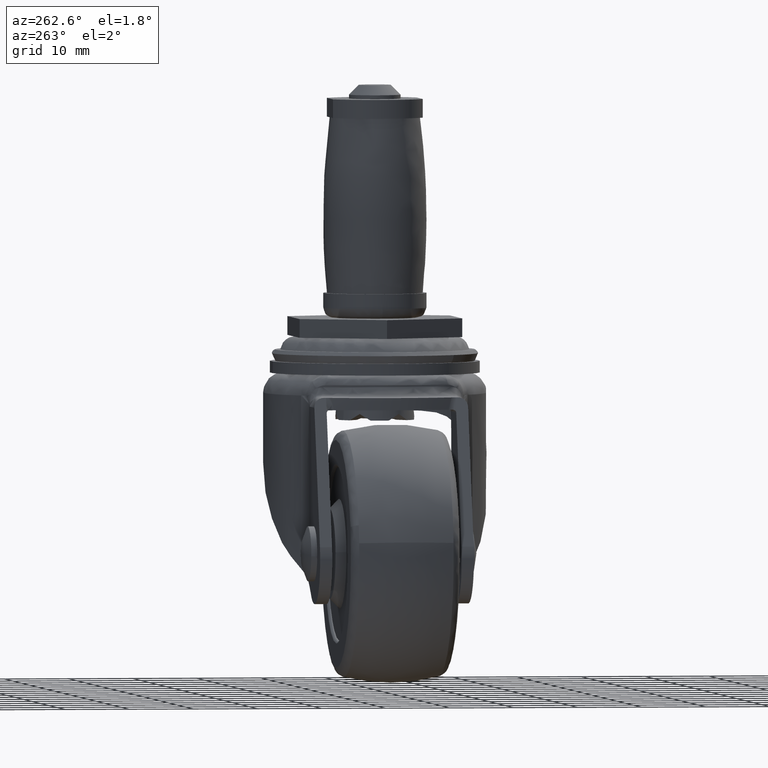
[diagram: clean part render]
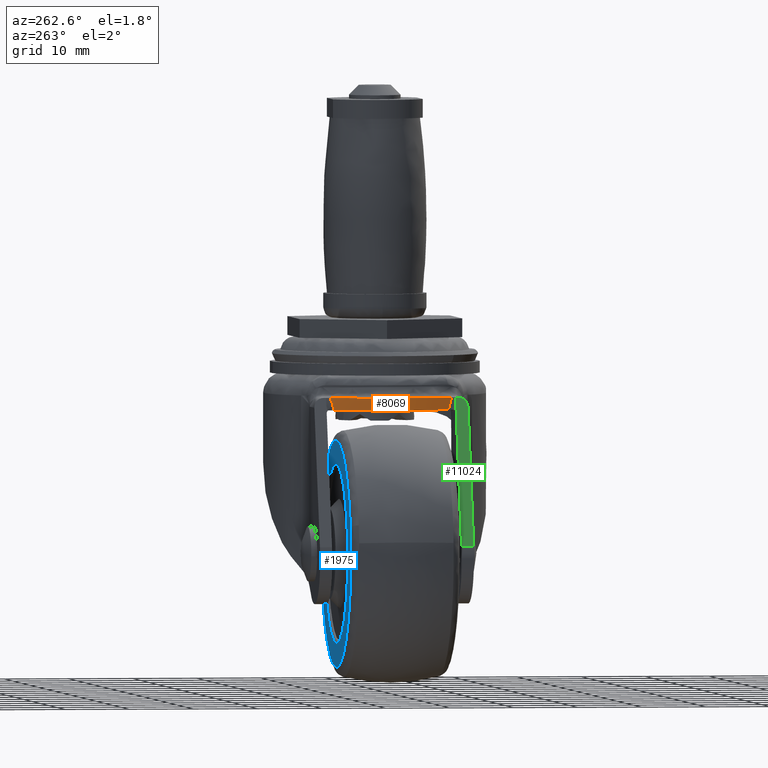
[diagram: same view with three faces highlighted in distinct colors, each labeled with its STEP entity id]
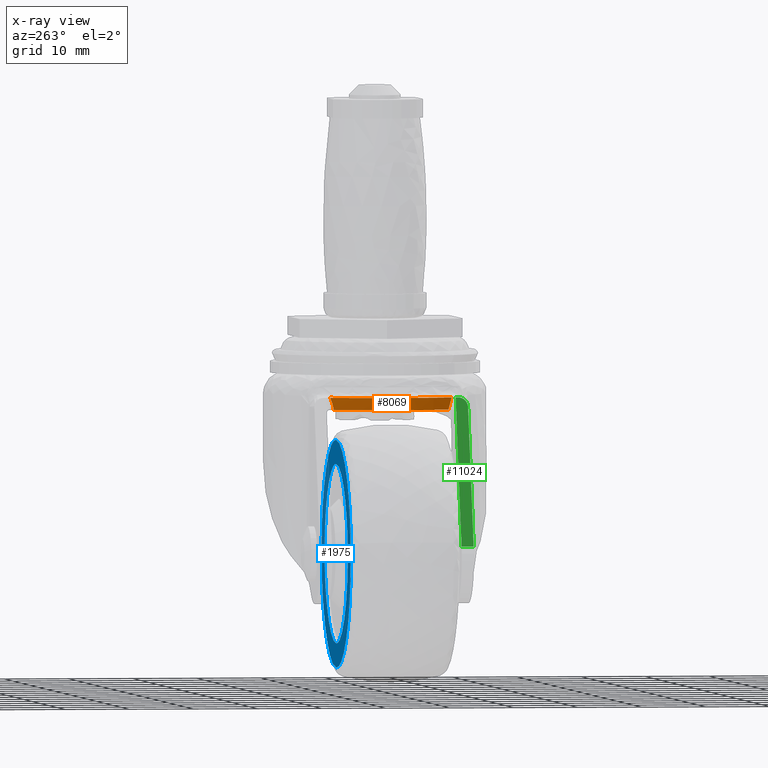
[diagram: x-ray of the same camera — body ghosted, the three highlighted faces saturated]
A machine part, auxiliary view with three faces highlighted in distinct colors.
The next image is the same camera in x-ray (body ghosted, the three faces saturated) — at least one of them is partly hidden behind the body in this view.
Their STEP definitions:

[orange] entity #8069 — the highlighted face is a freeform B-spline surface patch.
#7875=CARTESIAN_POINT('',(-19.690443371143299,-8.950319797784760,-13.740971000000039));
#7876=VERTEX_POINT('',#7875);
#7898=CARTESIAN_POINT('',(-19.431056740253052,-9.481630320366211,-11.850971000000101));
#7899=VERTEX_POINT('',#7898);
#7911=CARTESIAN_POINT('',(-19.690443371143299,-8.950319797784760,-13.740971000000039));
#7912=CARTESIAN_POINT('',(-19.676226628024839,-8.980510777933832,-13.578913876093020));
#7913=CARTESIAN_POINT('',(-19.660607875953520,-9.013495783947111,-13.417497484154669));
#7914=CARTESIAN_POINT('',(-19.626148100527040,-9.085693296732389,-13.096629250302170));
#7915=CARTESIAN_POINT('',(-19.607311361702529,-9.124899609244221,-12.937125412214071));
#7916=CARTESIAN_POINT('',(-19.565600887234812,-9.210901568941493,-12.620402659607629));
#7917=CARTESIAN_POINT('',(-19.542756298530730,-9.257642103612026,-12.463268097623081));
#7918=CARTESIAN_POINT('',(-19.491684168497510,-9.360967299937762,-12.153272845298529));
#7919=CARTESIAN_POINT('',(-19.463485864572650,-9.417509319386918,-12.000115233663619));
#7920=CARTESIAN_POINT('',(-19.431056740253052,-9.481630320366179,-11.850971000000101));
#7921=B_SPLINE_CURVE_WITH_KNOTS('',3,(#7911,#7912,#7913,#7914,#7915,#7916,#7917,#7918,#7919,#7920),.UNSPECIFIED.,.F.,.U.,(4,2,2,2,4),(0.0,0.250000000000000,0.500000000000000,0.750000000000000,1.0),.UNSPECIFIED.);
#7922=EDGE_CURVE('',#7876,#7899,#7921,.T.);
#7975=CARTESIAN_POINT('',(-19.690443080611001,8.950319499360791,-13.740971000000039));
#7976=VERTEX_POINT('',#7975);
#7988=CARTESIAN_POINT('',(-19.431056620267199,9.481629642205599,-11.850971000000101));
#7989=VERTEX_POINT('',#7988);
#7990=CARTESIAN_POINT('',(-19.431056620267199,9.481629642205599,-11.850971000000101));
#7991=CARTESIAN_POINT('',(-19.463485714914391,9.417508701911373,-12.000115253374849));
#7992=CARTESIAN_POINT('',(-19.491683997837661,9.360966727166387,-12.153272872593771));
#7993=CARTESIAN_POINT('',(-19.542756092295232,9.257641608079984,-12.463268131699520));
#7994=CARTESIAN_POINT('',(-19.565600667072211,9.210901104706828,-12.620402694604699));
#7995=CARTESIAN_POINT('',(-19.607311116626239,9.124899201936247,-12.937125440762150));
#7996=CARTESIAN_POINT('',(-19.626147844966301,9.085692914040262,-13.096629274336070));
#7997=CARTESIAN_POINT('',(-19.660607601545490,9.013495446180622,-13.417497497654560));
#7998=CARTESIAN_POINT('',(-19.676226345258911,8.980510460474354,-13.578913883379160));
#7999=CARTESIAN_POINT('',(-19.690443080611001,8.950319499360791,-13.740971000000039));
#8000=B_SPLINE_CURVE_WITH_KNOTS('',3,(#7990,#7991,#7992,#7993,#7994,#7995,#7996,#7997,#7998,#7999),.UNSPECIFIED.,.F.,.U.,(4,2,2,2,4),(0.0,0.250000000000000,0.500000000000000,0.750000000000000,1.0),.UNSPECIFIED.);
#8001=EDGE_CURVE('',#7989,#7976,#8000,.T.);
#8025=CARTESIAN_POINT('',(-19.007420988018112,-10.276489755889351,-13.788221000000039));
#8026=CARTESIAN_POINT('',(-19.007420988018112,-10.276489755889351,-11.802539750000101));
#8027=CARTESIAN_POINT('',(-24.784216651935314,0.024147971005365,-13.788221000000043));
#8028=CARTESIAN_POINT('',(-24.784216651935314,0.024147971005365,-11.802539750000101));
#8029=CARTESIAN_POINT('',(-18.986790673724567,10.313188633309444,-13.788221000000039));
#8030=CARTESIAN_POINT('',(-18.986790673724567,10.313188633309444,-11.802539750000109));
#8038=(BOUNDED_SURFACE()B_SPLINE_SURFACE(1,2,((#8025,#8027,#8029),(#8026,#8028,#8030)),.UNSPECIFIED.,.F.,.F.,.U.)B_SPLINE_SURFACE_WITH_KNOTS((2,2),(3,3),(0.0,1.0),(0.0,22.000927826651608),.UNSPECIFIED.)GEOMETRIC_REPRESENTATION_ITEM()RATIONAL_B_SPLINE_SURFACE(((1.0,0.871081397774855,0.998556720761890),(1.0,0.871081397774855,0.998556720761890)))REPRESENTATION_ITEM('')SURFACE());
#8039=CARTESIAN_POINT('',(-19.431056620267210,9.481629642205601,-11.850971000000101));
#8040=CARTESIAN_POINT('',(-24.226380482921854,-0.000000308738951,-11.850971000000099));
#8041=CARTESIAN_POINT('',(-19.431056740253059,-9.481630320366204,-11.850971000000101));
#8049=(BOUNDED_CURVE()B_SPLINE_CURVE(2,(#8039,#8040,#8041),.UNSPECIFIED.,.F.,.U.)CURVE()GEOMETRIC_REPRESENTATION_ITEM()QUASI_UNIFORM_CURVE()RATIONAL_B_SPLINE_CURVE((1.0,0.892365731503941,1.0))REPRESENTATION_ITEM(''));
#8050=EDGE_CURVE('',#7989,#7899,#8049,.T.);
#8051=ORIENTED_EDGE('',*,*,#8050,.F.);
#8052=ORIENTED_EDGE('',*,*,#8001,.T.);
#8053=CARTESIAN_POINT('',(-19.690443080611011,8.950319499360797,-13.740971000000039));
#8054=CARTESIAN_POINT('',(-23.905092766960706,-0.000000080807061,-13.740971000000041));
#8055=CARTESIAN_POINT('',(-19.690443371143299,-8.950319797784752,-13.740971000000039));
#8063=(BOUNDED_CURVE()B_SPLINE_CURVE(2,(#8053,#8054,#8055),.UNSPECIFIED.,.F.,.U.)CURVE()GEOMETRIC_REPRESENTATION_ITEM()QUASI_UNIFORM_CURVE()RATIONAL_B_SPLINE_CURVE((1.0,0.904712186044011,1.0))REPRESENTATION_ITEM(''));
#8064=EDGE_CURVE('',#7976,#7876,#8063,.T.);
#8065=ORIENTED_EDGE('',*,*,#8064,.T.);
#8066=ORIENTED_EDGE('',*,*,#7922,.T.);
#8067=EDGE_LOOP('',(#8051,#8052,#8065,#8066));
#8068=FACE_OUTER_BOUND('',#8067,.T.);
#8069=ADVANCED_FACE('',(#8068),#8038,.T.);

[blue] entity #1975 — the highlighted face is a freeform B-spline surface patch.
#1451=CARTESIAN_POINT('',(-1.983238122407538,8.499999999999988,-40.597842754555941));
#1452=VERTEX_POINT('',#1451);
#1466=CARTESIAN_POINT('',(-19.0,8.500000000000000,-18.373016000000302));
#1467=VERTEX_POINT('',#1466);
#1468=CARTESIAN_POINT('',(-1.983238122407537,8.499999999999988,-40.597842754555948));
#1469=CARTESIAN_POINT('',(-1.373021000000099,8.500000000000000,-38.339412272959052));
#1470=CARTESIAN_POINT('',(-1.373021000000099,8.500000000000000,-35.999995000000197));
#1471=CARTESIAN_POINT('',(-1.373021000000099,8.500000000000002,-18.373016000000302));
#1472=CARTESIAN_POINT('',(-19.0,8.500000000000000,-18.373016000000302));
#1480=(BOUNDED_CURVE()B_SPLINE_CURVE(2,(#1468,#1469,#1470,#1471,#1472),.UNSPECIFIED.,.F.,.U.)B_SPLINE_CURVE_WITH_KNOTS((3,2,3),(0.205522207669562,0.250000000000000,0.500000000000000),.UNSPECIFIED.)CURVE()GEOMETRIC_REPRESENTATION_ITEM()RATIONAL_B_SPLINE_CURVE((0.914323587273983,0.947891024954486,1.0,0.707106781186548,1.0))REPRESENTATION_ITEM(''));
#1481=EDGE_CURVE('',#1452,#1467,#1480,.T.);
#1483=CARTESIAN_POINT('',(-36.016761877592472,8.499999999999986,-31.402147245444478));
#1484=VERTEX_POINT('',#1483);
#1485=CARTESIAN_POINT('',(-19.0,8.500000000000000,-18.373016000000302));
#1486=CARTESIAN_POINT('',(-32.496352864072584,8.500000000000000,-18.373016000000298));
#1487=CARTESIAN_POINT('',(-36.016761877592465,8.499999999999986,-31.402147245444482));
#1495=(BOUNDED_CURVE()B_SPLINE_CURVE(2,(#1485,#1486,#1487),.UNSPECIFIED.,.F.,.U.)B_SPLINE_CURVE_WITH_KNOTS((3,3),(0.500000000000000,0.705522207669562),.UNSPECIFIED.)CURVE()GEOMETRIC_REPRESENTATION_ITEM()RATIONAL_B_SPLINE_CURVE((1.0,0.759215756232061,0.914323587273984))REPRESENTATION_ITEM(''));
#1496=EDGE_CURVE('',#1467,#1484,#1495,.T.);
#1598=CARTESIAN_POINT('',(-19.0,8.500000000000000,-53.626974000000097));
#1599=VERTEX_POINT('',#1598);
#1600=CARTESIAN_POINT('',(-36.016761877592458,8.499999999999986,-31.402147245444485));
#1601=CARTESIAN_POINT('',(-36.626978999999906,8.500000000000000,-33.660577727041357));
#1602=CARTESIAN_POINT('',(-36.626978999999899,8.500000000000000,-35.999995000000197));
#1603=CARTESIAN_POINT('',(-36.626978999999899,8.500000000000002,-53.626974000000104));
#1604=CARTESIAN_POINT('',(-19.0,8.500000000000000,-53.626974000000097));
#1612=(BOUNDED_CURVE()B_SPLINE_CURVE(2,(#1600,#1601,#1602,#1603,#1604),.UNSPECIFIED.,.F.,.U.)B_SPLINE_CURVE_WITH_KNOTS((3,2,3),(0.705522207669562,0.750000000000000,1.0),.UNSPECIFIED.)CURVE()GEOMETRIC_REPRESENTATION_ITEM()RATIONAL_B_SPLINE_CURVE((0.914323587273984,0.947891024954487,1.0,0.707106781186548,1.0))REPRESENTATION_ITEM(''));
#1613=EDGE_CURVE('',#1484,#1599,#1612,.T.);
#1615=CARTESIAN_POINT('',(-19.0,8.500000000000000,-53.626974000000097));
#1616=CARTESIAN_POINT('',(-5.503647135927421,8.500000000000002,-53.626974000000104));
#1617=CARTESIAN_POINT('',(-1.983238122407538,8.499999999999988,-40.597842754555948));
#1625=(BOUNDED_CURVE()B_SPLINE_CURVE(2,(#1615,#1616,#1617),.UNSPECIFIED.,.F.,.U.)B_SPLINE_CURVE_WITH_KNOTS((3,3),(0.0,0.205522207669562),.UNSPECIFIED.)CURVE()GEOMETRIC_REPRESENTATION_ITEM()RATIONAL_B_SPLINE_CURVE((1.0,0.759215756232061,0.914323587273984))REPRESENTATION_ITEM(''));
#1626=EDGE_CURVE('',#1599,#1452,#1625,.T.);
#1655=CARTESIAN_POINT('',(-32.866176815588076,8.499999999999998,-36.969288172364827));
#1656=VERTEX_POINT('',#1655);
#1657=CARTESIAN_POINT('',(-19.0,8.500000000000000,-49.900008999999997));
#1658=VERTEX_POINT('',#1657);
#1659=CARTESIAN_POINT('',(-32.866176815588076,8.499999999999998,-36.969288172364827));
#1660=CARTESIAN_POINT('',(-31.962275231833893,8.500000000000000,-49.900009000000011));
#1661=CARTESIAN_POINT('',(-19.0,8.500000000000000,-49.900008999999997));
#1669=(BOUNDED_CURVE()B_SPLINE_CURVE(2,(#1659,#1660,#1661),.UNSPECIFIED.,.F.,.U.)B_SPLINE_CURVE_WITH_KNOTS((3,3),(0.762166313473969,1.0),.UNSPECIFIED.)CURVE()GEOMETRIC_REPRESENTATION_ITEM()RATIONAL_B_SPLINE_CURVE((0.972879876367812,0.721360504044484,1.0))REPRESENTATION_ITEM(''));
#1670=EDGE_CURVE('',#1656,#1658,#1669,.T.);
#1688=CARTESIAN_POINT('',(-5.101083500340082,8.500000000000000,-35.825326869530763));
#1689=VERTEX_POINT('',#1688);
#1703=CARTESIAN_POINT('',(-19.0,8.500000000000000,-49.900008999999997));
#1704=CARTESIAN_POINT('',(-5.099986000000202,8.500000000000002,-49.900009000000011));
#1705=CARTESIAN_POINT('',(-5.099986000000200,8.500000000000000,-35.999995000000197));
#1706=CARTESIAN_POINT('',(-5.099986000000200,8.500000000000002,-35.912657486609163));
#1707=CARTESIAN_POINT('',(-5.101083500340082,8.500000000000000,-35.825326869530763));
#1715=(BOUNDED_CURVE()B_SPLINE_CURVE(2,(#1703,#1704,#1705,#1706,#1707),.UNSPECIFIED.,.F.,.U.)B_SPLINE_CURVE_WITH_KNOTS((3,2,3),(0.0,0.250000000000000,0.252215704086825),.UNSPECIFIED.)CURVE()GEOMETRIC_REPRESENTATION_ITEM()RATIONAL_B_SPLINE_CURVE((1.0,0.707106781186548,1.0,0.997404141192287,0.994854295624326))REPRESENTATION_ITEM(''));
#1716=EDGE_CURVE('',#1658,#1689,#1715,.T.);
#1750=CARTESIAN_POINT('',(-19.0,8.500000000000000,-22.099981000000401));
#1751=VERTEX_POINT('',#1750);
#1752=CARTESIAN_POINT('',(-19.0,8.500000000000000,-22.099981000000401));
#1753=CARTESIAN_POINT('',(-32.900013999999800,8.500000000000002,-22.099981000000412));
#1754=CARTESIAN_POINT('',(-32.900013999999800,8.500000000000000,-35.999995000000197));
#1755=CARTESIAN_POINT('',(-32.900013999999807,8.500000000000000,-36.485232199754620));
#1756=CARTESIAN_POINT('',(-32.866176815588084,8.499999999999998,-36.969288172364827));
#1764=(BOUNDED_CURVE()B_SPLINE_CURVE(2,(#1752,#1753,#1754,#1755,#1756),.UNSPECIFIED.,.F.,.U.)B_SPLINE_CURVE_WITH_KNOTS((3,2,3),(0.500000000000000,0.750000000000000,0.762166313473968),.UNSPECIFIED.)CURVE()GEOMETRIC_REPRESENTATION_ITEM()RATIONAL_B_SPLINE_CURVE((1.0,0.707106781186548,1.0,0.985746277142064,0.972879876367813))REPRESENTATION_ITEM(''));
#1765=EDGE_CURVE('',#1751,#1656,#1764,.T.);
#1767=CARTESIAN_POINT('',(-5.101083500340082,8.500000000000000,-35.825326869530763));
#1768=CARTESIAN_POINT('',(-5.273570349789155,8.500000000000000,-22.099981000000412));
#1769=CARTESIAN_POINT('',(-19.0,8.500000000000000,-22.099981000000401));
#1777=(BOUNDED_CURVE()B_SPLINE_CURVE(2,(#1767,#1768,#1769),.UNSPECIFIED.,.F.,.U.)B_SPLINE_CURVE_WITH_KNOTS((3,3),(0.252215704086825,0.500000000000000),.UNSPECIFIED.)CURVE()GEOMETRIC_REPRESENTATION_ITEM()RATIONAL_B_SPLINE_CURVE((0.994854295624326,0.709702639994261,1.0))REPRESENTATION_ITEM(''));
#1778=EDGE_CURVE('',#1689,#1751,#1777,.T.);
#1958=CARTESIAN_POINT('',(-38.384315148558947,8.500000000000000,-16.612081323120162));
#1959=CARTESIAN_POINT('',(-38.384315148558947,8.500000000000000,-55.387907416100461));
#1960=CARTESIAN_POINT('',(0.384315778908545,8.500000000000000,-16.612081323120162));
#1961=CARTESIAN_POINT('',(0.384315778908545,8.500000000000000,-55.387907416100461));
#1962=B_SPLINE_SURFACE_WITH_KNOTS('',1,1,((#1958,#1960),(#1959,#1961)),.UNSPECIFIED.,.F.,.F.,.U.,(2,2),(2,2),(0.0,38.775826092980303),(0.0,38.768630927467491),.UNSPECIFIED.);
#1963=ORIENTED_EDGE('',*,*,#1613,.F.);
#1964=ORIENTED_EDGE('',*,*,#1496,.F.);
#1965=ORIENTED_EDGE('',*,*,#1481,.F.);
#1966=ORIENTED_EDGE('',*,*,#1626,.F.);
#1967=EDGE_LOOP('',(#1963,#1964,#1965,#1966));
#1968=FACE_OUTER_BOUND('',#1967,.T.);
#1969=ORIENTED_EDGE('',*,*,#1716,.T.);
#1970=ORIENTED_EDGE('',*,*,#1778,.T.);
#1971=ORIENTED_EDGE('',*,*,#1765,.T.);
#1972=ORIENTED_EDGE('',*,*,#1670,.T.);
#1973=EDGE_LOOP('',(#1969,#1970,#1971,#1972));
#1974=FACE_BOUND('',#1973,.T.);
#1975=ADVANCED_FACE('',(#1968,#1974),#1962,.F.);

[green] entity #11024 — the highlighted face is a freeform B-spline surface patch.
#7641=CARTESIAN_POINT('',(-20.036063734657251,-10.109999999999999,-14.229881145335520));
#7642=VERTEX_POINT('',#7641);
#7672=CARTESIAN_POINT('',(-20.039531281533950,-10.110123000000000,-14.240970999999661));
#7673=VERTEX_POINT('',#7672);
#7679=CARTESIAN_POINT('',(-20.036063734657251,-10.109999999999999,-14.229881145335520));
#7680=CARTESIAN_POINT('',(-20.037797294815174,-10.110122999999998,-14.235425390557618));
#7681=CARTESIAN_POINT('',(-20.039531281533900,-10.110123000000000,-14.240970999999680));
#7689=(BOUNDED_CURVE()B_SPLINE_CURVE(2,(#7679,#7680,#7681),.UNSPECIFIED.,.F.,.U.)CURVE()GEOMETRIC_REPRESENTATION_ITEM()QUASI_UNIFORM_CURVE()RATIONAL_B_SPLINE_CURVE((1.0,0.999938498102961,1.0))REPRESENTATION_ITEM(''));
#7690=EDGE_CURVE('',#7642,#7673,#7689,.T.);
#7891=CARTESIAN_POINT('',(-19.292232305463649,-10.109999999999999,-11.850971000000021));
#7892=VERTEX_POINT('',#7891);
#7893=CARTESIAN_POINT('',(-19.292232305463649,-10.109999999999999,-11.850971000000021));
#7894=CARTESIAN_POINT('',(-20.036063734657251,-10.109999999999999,-14.229881145335520));
#7895=QUASI_UNIFORM_CURVE('',1,(#7893,#7894),.UNSPECIFIED.,.F.,.U.);
#7896=EDGE_CURVE('',#7892,#7642,#7895,.T.);
#9982=CARTESIAN_POINT('',(-19.761248399231651,-12.000123000000000,-13.350970999999999));
#9983=VERTEX_POINT('',#9982);
#9984=CARTESIAN_POINT('',(-19.292232305463649,-10.500123000000000,-11.850971000000021));
#9985=VERTEX_POINT('',#9984);
#9986=CARTESIAN_POINT('',(-19.761248399231651,-12.000123000000000,-13.350970999999999));
#9987=CARTESIAN_POINT('',(-19.566975544834733,-12.000122999999999,-12.729650568851838));
#9988=CARTESIAN_POINT('',(-19.429603905783679,-11.560783066051121,-12.290310722491480));
#9989=CARTESIAN_POINT('',(-19.292232266732633,-11.121443132102238,-11.850970876131131));
#9990=CARTESIAN_POINT('',(-19.292232305463649,-10.500123000000000,-11.850971000000021));
#9998=(BOUNDED_CURVE()B_SPLINE_CURVE(2,(#9986,#9987,#9988,#9989,#9990),.UNSPECIFIED.,.F.,.U.)B_SPLINE_CURVE_WITH_KNOTS((3,2,3),(0.0,0.500000000000000,1.0),.UNSPECIFIED.)CURVE()GEOMETRIC_REPRESENTATION_ITEM()RATIONAL_B_SPLINE_CURVE((1.0,0.923879513437967,1.0,0.923879513437967,1.0))REPRESENTATION_ITEM(''));
#9999=EDGE_CURVE('',#9983,#9985,#9998,.T.);
#10393=CARTESIAN_POINT('',(-26.451252514114650,-10.110123000000019,-34.746839520675152));
#10394=VERTEX_POINT('',#10393);
#10395=CARTESIAN_POINT('',(-20.039531281533950,-10.110123000000000,-14.240970999999661));
#10396=CARTESIAN_POINT('',(-26.451252514114650,-10.110123000000019,-34.746839520675152));
#10397=QUASI_UNIFORM_CURVE('',1,(#10395,#10396),.UNSPECIFIED.,.F.,.U.);
#10398=EDGE_CURVE('',#7673,#10394,#10397,.T.);
#10792=CARTESIAN_POINT('',(-26.451252514114650,-12.000122999999959,-34.746839520675152));
#10793=VERTEX_POINT('',#10792);
#10794=CARTESIAN_POINT('',(-19.761248399231651,-12.000123000000000,-13.350970999999999));
#10795=CARTESIAN_POINT('',(-26.451252514114650,-12.000122999999959,-34.746839520675152));
#10796=QUASI_UNIFORM_CURVE('',1,(#10794,#10795),.UNSPECIFIED.,.F.,.U.);
#10797=EDGE_CURVE('',#9983,#10793,#10796,.T.);
#11002=CARTESIAN_POINT('',(-18.934639337408900,-12.094534689178520,-10.707322713279620));
#11003=CARTESIAN_POINT('',(-26.808845532229000,-12.094534689178520,-35.890486892869284));
#11004=CARTESIAN_POINT('',(-18.934639337408900,-10.015588023538211,-10.707322713279620));
#11005=CARTESIAN_POINT('',(-26.808845532229000,-10.015588023538211,-35.890486892869284));
#11006=B_SPLINE_SURFACE_WITH_KNOTS('',1,1,((#11002,#11004),(#11003,#11005)),.UNSPECIFIED.,.F.,.F.,.U.,(2,2),(2,2),(0.0,26.385505136243101),(0.0,2.078946665640309),.UNSPECIFIED.);
#11007=ORIENTED_EDGE('',*,*,#7896,.T.);
#11008=ORIENTED_EDGE('',*,*,#7690,.T.);
#11009=ORIENTED_EDGE('',*,*,#10398,.T.);
#11010=CARTESIAN_POINT('',(-26.451252514114650,-10.110123000000019,-34.746839520675152));
#11011=CARTESIAN_POINT('',(-26.451252514114650,-12.000122999999959,-34.746839520675152));
#11012=QUASI_UNIFORM_CURVE('',1,(#11010,#11011),.UNSPECIFIED.,.F.,.U.);
#11013=EDGE_CURVE('',#10394,#10793,#11012,.T.);
#11014=ORIENTED_EDGE('',*,*,#11013,.T.);
#11015=ORIENTED_EDGE('',*,*,#10797,.F.);
#11016=ORIENTED_EDGE('',*,*,#9999,.T.);
#11017=CARTESIAN_POINT('',(-19.292232305463649,-10.500123000000000,-11.850971000000021));
#11018=CARTESIAN_POINT('',(-19.292232305463649,-10.109999999999999,-11.850971000000021));
#11019=QUASI_UNIFORM_CURVE('',1,(#11017,#11018),.UNSPECIFIED.,.F.,.U.);
#11020=EDGE_CURVE('',#9985,#7892,#11019,.T.);
#11021=ORIENTED_EDGE('',*,*,#11020,.T.);
#11022=EDGE_LOOP('',(#11007,#11008,#11009,#11014,#11015,#11016,#11021));
#11023=FACE_OUTER_BOUND('',#11022,.T.);
#11024=ADVANCED_FACE('',(#11023),#11006,.F.);